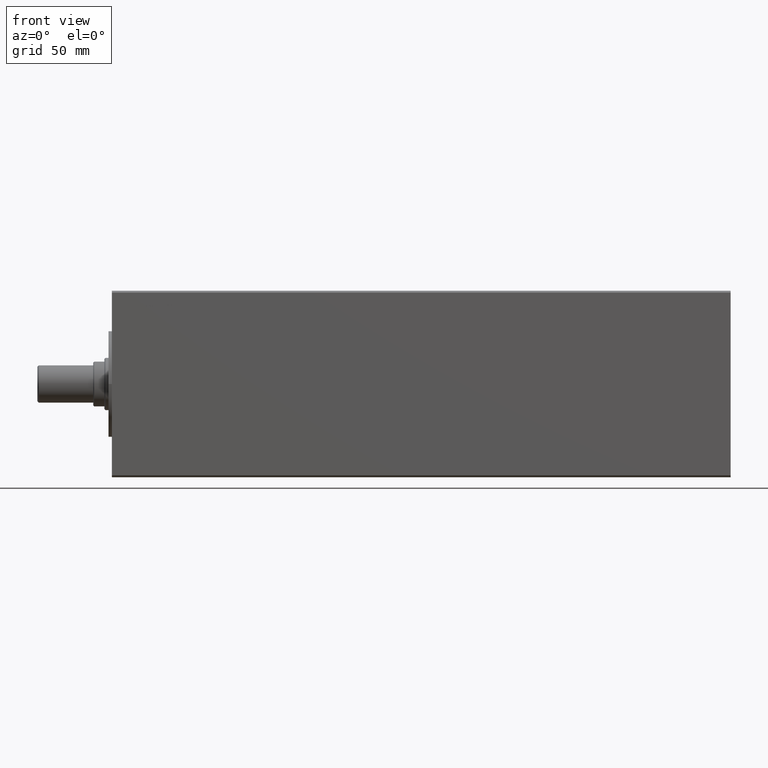
[diagram: clean part render]
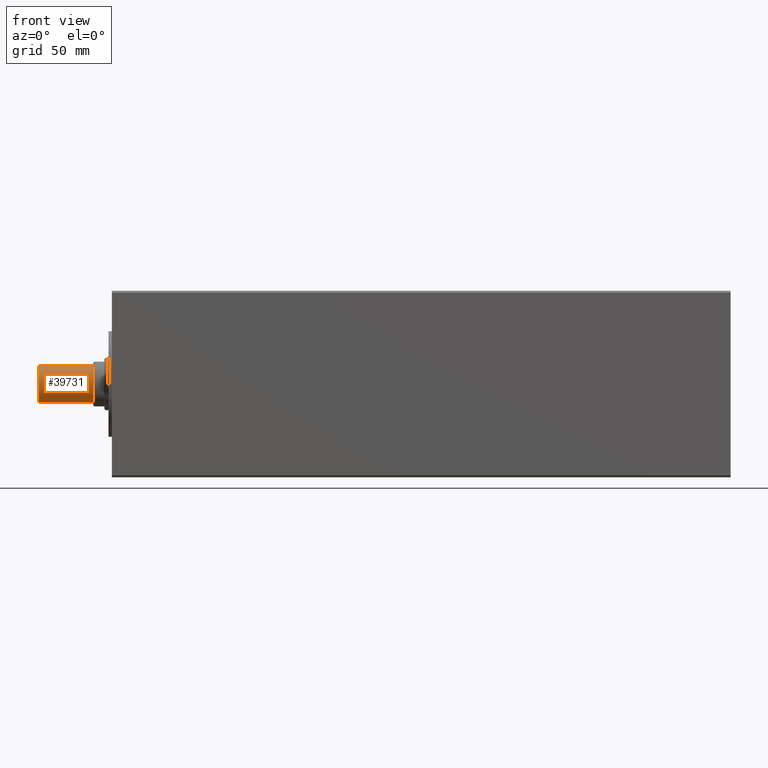
[diagram: same view with one face highlighted and labeled with its STEP entity id]
A machine part, front view. The second image highlights one B-rep face of the part: STEP entity #39731.
In plain terms, the highlighted cylindrical surface (edge-blend (fillet) strip) has radius 10 mm, axis along (1, -0, -0).
Its self-contained STEP definition (entity closure, byte-faithful):
#176 = EDGE_CURVE ( 'NONE', #5407, #43144, #22645, .T. ) ;
#1373 = VECTOR ( 'NONE', #37344, 1000.000000000000000 ) ;
#2757 = EDGE_CURVE ( 'NONE', #5407, #2831, #6154, .T. ) ;
#2831 = VERTEX_POINT ( 'NONE', #31200 ) ;
#4408 = DIRECTION ( 'NONE',  ( 1.000000000000000000, 0.000000000000000000, 0.000000000000000000 ) ) ;
#5407 = VERTEX_POINT ( 'NONE', #12062 ) ;
#5810 = CARTESIAN_POINT ( 'NONE',  ( 0.000000000000000000, 0.000000000000000000, -30.00000000000000000 ) ) ;
#6154 = LINE ( 'NONE', #29204, #36965 ) ;
#6457 = AXIS2_PLACEMENT_3D ( 'NONE', #30611, #26598, #43375 ) ;
#9039 = AXIS2_PLACEMENT_3D ( 'NONE', #42213, #35086, #4408 ) ;
#11641 = CARTESIAN_POINT ( 'NONE',  ( 10.00000000000000000, 0.000000000000000000, -29.19999999999999574 ) ) ;
#12062 = CARTESIAN_POINT ( 'NONE',  ( -10.00000000000000000, 1.224646799147353256E-15, -29.19999999999999574 ) ) ;
#13190 = CYLINDRICAL_SURFACE ( 'NONE', #44234, 10.00000000000000000 ) ;
#13322 = EDGE_LOOP ( 'NONE', ( #38319, #19598, #41260, #43968 ) ) ;
#17131 = EDGE_CURVE ( 'NONE', #2831, #31026, #20796, .T. ) ;
#19598 = ORIENTED_EDGE ( 'NONE', *, *, #176, .T. ) ;
#20144 = DIRECTION ( 'NONE',  ( 1.000000000000000000, 0.000000000000000000, 0.000000000000000000 ) ) ;
#20796 = CIRCLE ( 'NONE', #6457, 10.00000000000000000 ) ;
#22645 = CIRCLE ( 'NONE', #9039, 10.00000000000000000 ) ;
#23500 = DIRECTION ( 'NONE',  ( 0.000000000000000000, 0.000000000000000000, 1.000000000000000000 ) ) ;
#26598 = DIRECTION ( 'NONE',  ( 0.000000000000000000, 0.000000000000000000, 1.000000000000000000 ) ) ;
#29204 = CARTESIAN_POINT ( 'NONE',  ( -10.00000000000000000, 1.224646799147353256E-15, -30.00000000000000000 ) ) ;
#30611 = CARTESIAN_POINT ( 'NONE',  ( 0.000000000000000000, 0.000000000000000000, 0.000000000000000000 ) ) ;
#31026 = VERTEX_POINT ( 'NONE', #38207 ) ;
#31200 = CARTESIAN_POINT ( 'NONE',  ( -10.00000000000000000, 1.224646799147353256E-15, 0.000000000000000000 ) ) ;
#35086 = DIRECTION ( 'NONE',  ( -0.000000000000000000, -0.000000000000000000, 1.000000000000000000 ) ) ;
#36965 = VECTOR ( 'NONE', #43533, 1000.000000000000000 ) ;
#37344 = DIRECTION ( 'NONE',  ( 0.000000000000000000, 0.000000000000000000, 1.000000000000000000 ) ) ;
#37381 = FACE_OUTER_BOUND ( 'NONE', #13322, .T. ) ;
#38207 = CARTESIAN_POINT ( 'NONE',  ( 10.00000000000000000, 0.000000000000000000, 0.000000000000000000 ) ) ;
#38232 = LINE ( 'NONE', #40919, #1373 ) ;
#38319 = ORIENTED_EDGE ( 'NONE', *, *, #2757, .F. ) ;
#39731 = ADVANCED_FACE ( 'NONE', ( #37381 ), #13190, .T. ) ;
#40919 = CARTESIAN_POINT ( 'NONE',  ( 10.00000000000000000, 0.000000000000000000, -30.00000000000000000 ) ) ;
#41260 = ORIENTED_EDGE ( 'NONE', *, *, #41605, .T. ) ;
#41605 = EDGE_CURVE ( 'NONE', #43144, #31026, #38232, .T. ) ;
#42213 = CARTESIAN_POINT ( 'NONE',  ( 0.000000000000000000, 0.000000000000000000, -29.19999999999999574 ) ) ;
#43144 = VERTEX_POINT ( 'NONE', #11641 ) ;
#43375 = DIRECTION ( 'NONE',  ( 1.000000000000000000, 0.000000000000000000, 0.000000000000000000 ) ) ;
#43533 = DIRECTION ( 'NONE',  ( 0.000000000000000000, 0.000000000000000000, 1.000000000000000000 ) ) ;
#43968 = ORIENTED_EDGE ( 'NONE', *, *, #17131, .F. ) ;
#44234 = AXIS2_PLACEMENT_3D ( 'NONE', #5810, #23500, #20144 ) ;